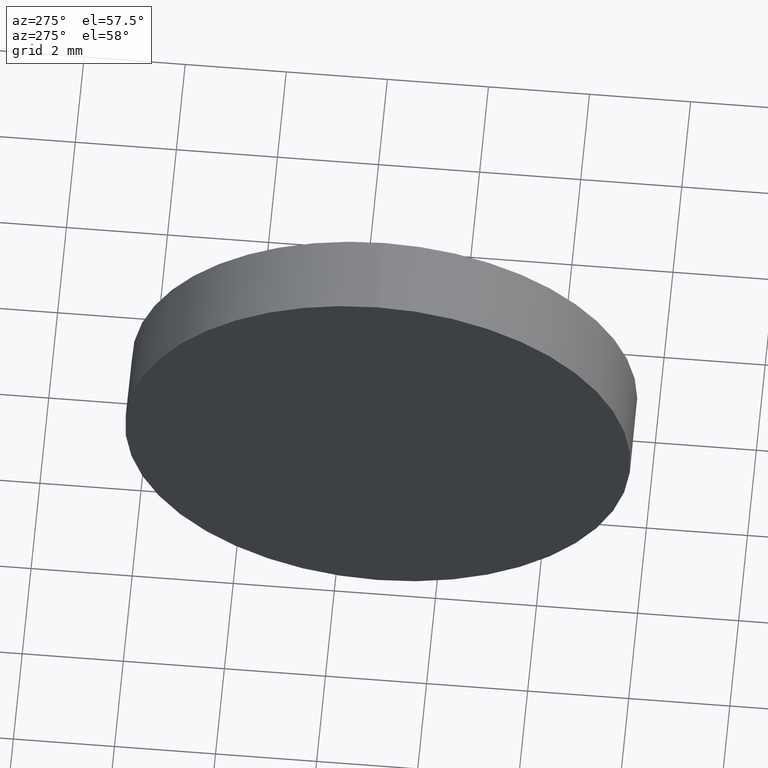
[diagram: clean part render]
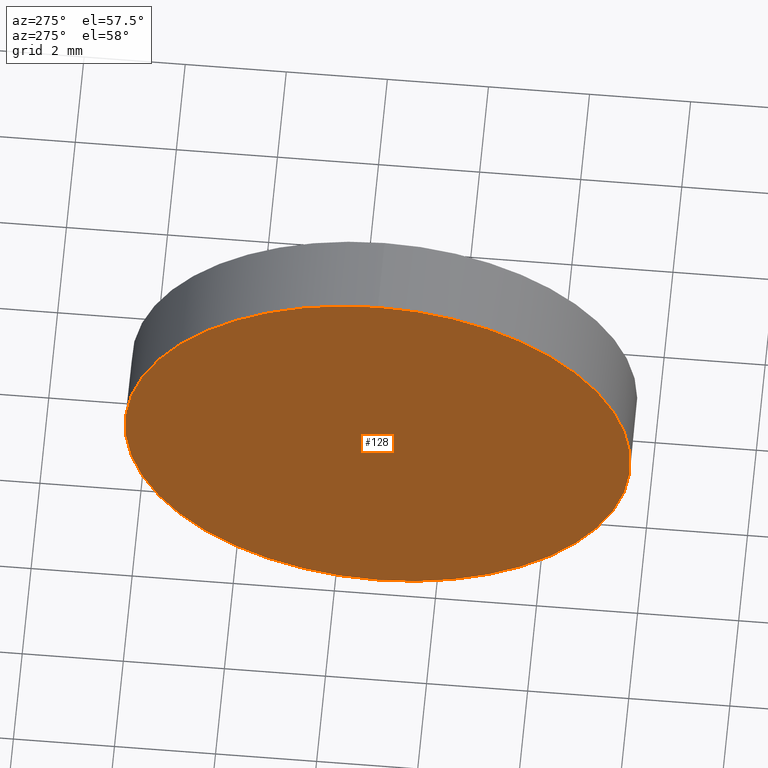
[diagram: same view with one face highlighted and labeled with its STEP entity id]
A machine part, auxiliary view. The second image highlights one B-rep face of the part: STEP entity #128.
In plain terms, the highlighted planar face has unit normal (1, 0, 0).
Its self-contained STEP definition (entity closure, byte-faithful):
#6 = DIRECTION ( 'NONE',  ( 1.000000000000000000, 0.0000000000000000000, 0.0000000000000000000 ) ) ;
#8 = PLANE ( 'NONE',  #107 ) ;
#26 = DIRECTION ( 'NONE',  ( 0.0000000000000000000, 0.0000000000000000000, -1.000000000000000000 ) ) ;
#38 = AXIS2_PLACEMENT_3D ( 'NONE', #68, #109, #77 ) ;
#43 = CIRCLE ( 'NONE', #98, 5.000000000000004400 ) ;
#56 = ORIENTED_EDGE ( 'NONE', *, *, #177, .T. ) ;
#66 = DIRECTION ( 'NONE',  ( 0.0000000000000000000, 0.0000000000000000000, 1.000000000000000000 ) ) ;
#68 = CARTESIAN_POINT ( 'NONE',  ( 492.1912287334225800, 43.15636075815854200, 0.0000000000000000000 ) ) ;
#77 = DIRECTION ( 'NONE',  ( 0.0000000000000000000, 0.0000000000000000000, 1.000000000000000000 ) ) ;
#81 = VERTEX_POINT ( 'NONE', #151 ) ;
#91 = EDGE_CURVE ( 'NONE', #81, #160, #99, .T. ) ;
#94 = CARTESIAN_POINT ( 'NONE',  ( 492.1912287334225800, 43.15636075815854200, 0.0000000000000000000 ) ) ;
#98 = AXIS2_PLACEMENT_3D ( 'NONE', #180, #134, #66 ) ;
#99 = CIRCLE ( 'NONE', #38, 5.000000000000004400 ) ;
#107 = AXIS2_PLACEMENT_3D ( 'NONE', #94, #6, #26 ) ;
#109 = DIRECTION ( 'NONE',  ( -1.000000000000000000, -0.0000000000000000000, -0.0000000000000000000 ) ) ;
#116 = ORIENTED_EDGE ( 'NONE', *, *, #91, .T. ) ;
#128 = ADVANCED_FACE ( 'NONE', ( #173 ), #8, .F. ) ;
#134 = DIRECTION ( 'NONE',  ( -1.000000000000000000, -0.0000000000000000000, -0.0000000000000000000 ) ) ;
#150 = CARTESIAN_POINT ( 'NONE',  ( 492.1912287334225800, 43.15636075815854200, -5.000000000000004400 ) ) ;
#151 = CARTESIAN_POINT ( 'NONE',  ( 492.1912287334225800, 43.15636075815854200, 5.000000000000004400 ) ) ;
#160 = VERTEX_POINT ( 'NONE', #150 ) ;
#173 = FACE_OUTER_BOUND ( 'NONE', #178, .T. ) ;
#177 = EDGE_CURVE ( 'NONE', #160, #81, #43, .T. ) ;
#178 = EDGE_LOOP ( 'NONE', ( #116, #56 ) ) ;
#180 = CARTESIAN_POINT ( 'NONE',  ( 492.1912287334225800, 43.15636075815854200, 0.0000000000000000000 ) ) ;